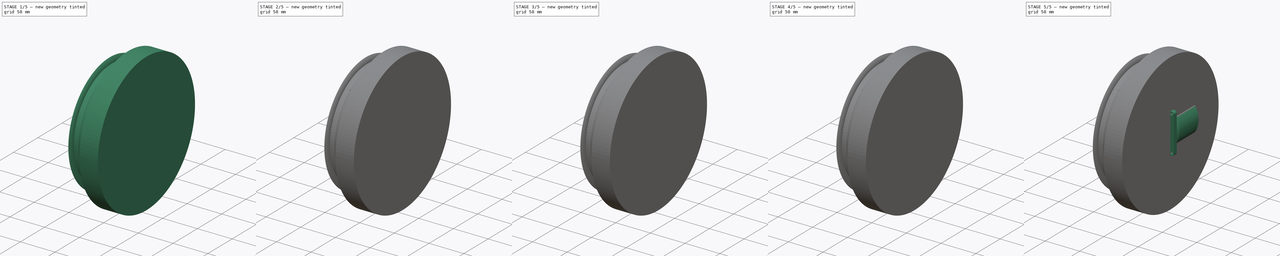
[diagram: build sequence overview — one tinted view per stage of 5, left to right]
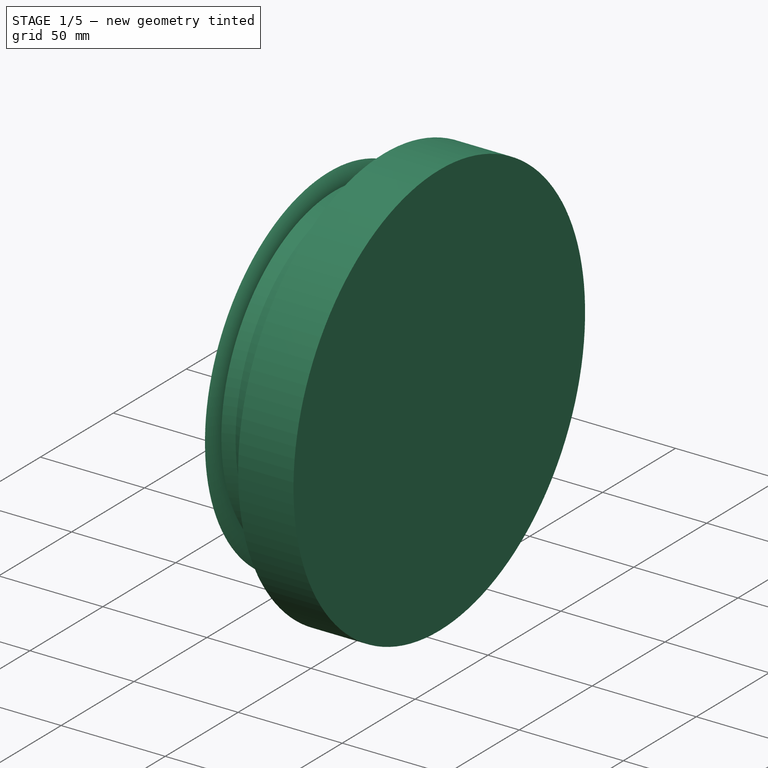
[diagram: stage 1 of 5 — iso view after this stage's code; geometry added in this stage tinted green]
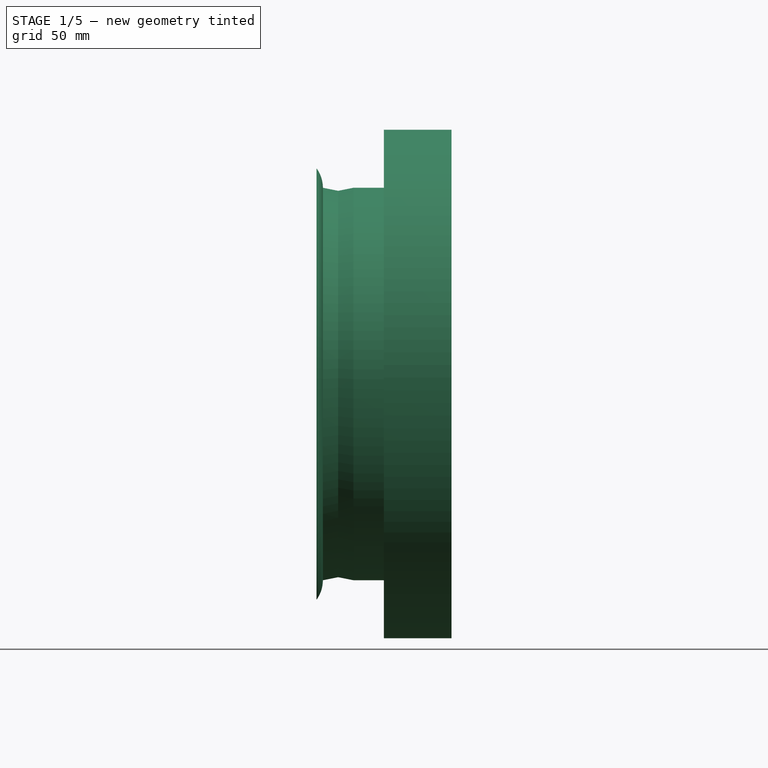
[diagram: stage 1 of 5 — front view after this stage's code; geometry added in this stage tinted green]
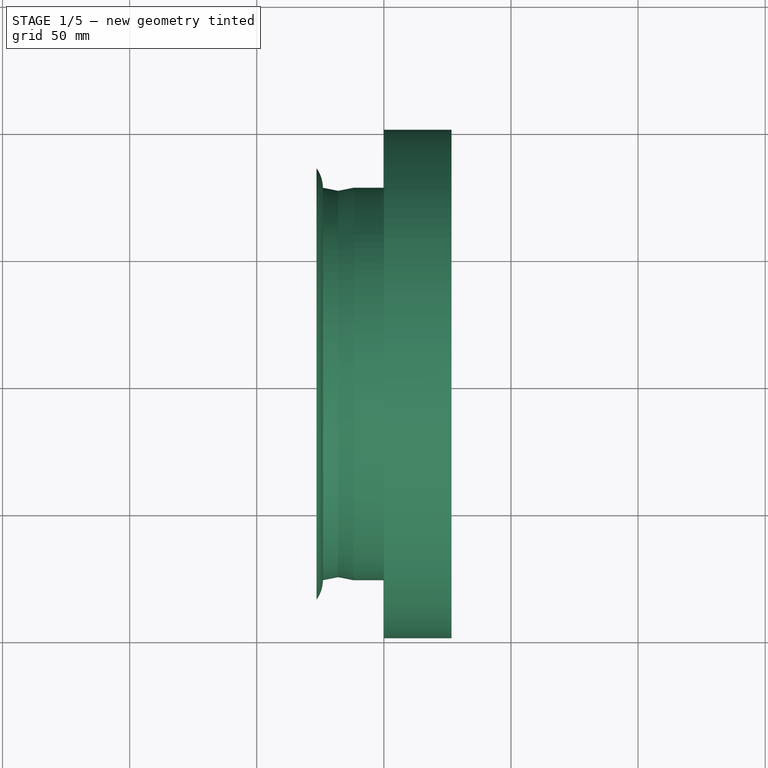
[diagram: stage 1 of 5 — top view after this stage's code; geometry added in this stage tinted green]
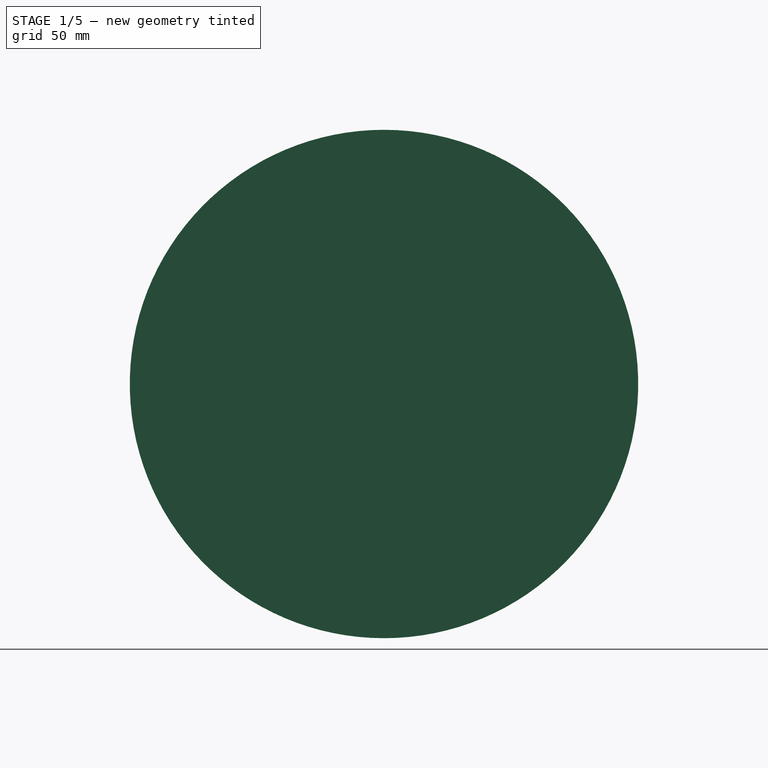
[diagram: stage 1 of 5 — right view after this stage's code; geometry added in this stage tinted green]
FCSTD DOCUMENT  (FreeCAD 1.0R39109 (Git))
Label: Wheel2
License: All rights reserved
LicenseURL: https://en.wikipedia.org/wiki/All_rights_reserved
objects: Sketcher::SketchObject×13, PartDesign::Body×7, PartDesign::Revolution×6, PartDesign::Pocket×5, App::Part×3, Part::FeaturePython×2, PartDesign::SubShapeBinder×2, Part::MultiCommon×2, App::FeaturePython×1, PartDesign::Pad×1, PartDesign::Groove×1, PartDesign::PolarPattern×1, Part::MultiFuse×1, Part::Cylinder×1
note: 82 computed .brp shape members not serialized (recipe doc carries the construction recipe); baked Part::Feature solids carry a one-line shape summary decoded from their .brp

FEATURE [App::FeaturePython] dd  # WARN: FeaturePython — macro-defined, semantics opaque (R4)
  DynamicData = Created with DynamicData (v2.73) workbench. | This is a simple container object built | for holding custom properties.
  G1_Height = 12
  G1_Module = 1.5
  G1_Teeth = 26
  G2_Teeth = 89
  MotorZ = -36.75
  expr: MotorZ = -G1_Module * G2_Teeth / 2 + 30 mm
FEATURE [App::Part] Part001  label="Part2"
  Origin = -> Origin001
FEATURE [Sketcher::SketchObject] Sketch062  label="T_Sketch062"
  ArcFitTolerance = 1e-06
  AttachmentSupport = -> [XZ_Plane003]
  FullyConstrained = true
  MakeInternals = false
  MapMode = 5
  Placement = pos=(0,0,0) rot=(1,0,0;1.5708rad)
  sketch-geometry (15):
    g0: LineSegment StartX=-20.5 StartY=-107.5 StartZ=0 EndX=20.5 EndY=-107.5 EndZ=0
    g1: ArcOfCircle [constr] CenterX=5.6e-15 CenterY=-100 CenterZ=0 NormalX=0 NormalY=0 NormalZ=1 AngleXU=0 Radius=30 StartAngle=0.927295 EndAngle=2.2143
    g2: GeomPoint X=0 Y=-70 Z=0
    g3: ArcOfCircle CenterX=-20.5 CenterY=-101.5 CenterZ=0 NormalX=0 NormalY=0 NormalZ=1 AngleXU=0 Radius=6 StartAngle=3.14159 EndAngle=4.71239
    g4: ArcOfCircle CenterX=20.5 CenterY=-101.5 CenterZ=0 NormalX=0 NormalY=0 NormalZ=1 AngleXU=0 Radius=6 StartAngle=4.71239 EndAngle=6.28319
    g5: LineSegment StartX=-26.5 StartY=-101.5 StartZ=0 EndX=-26.5 EndY=-84.8649 EndZ=0
    g6: LineSegment StartX=26.5 StartY=-101.5 StartZ=0 EndX=26.5 EndY=-84.8649 EndZ=0
    g7: ArcOfCircle CenterX=-37 CenterY=-77.2 CenterZ=0 NormalX=0 NormalY=0 NormalZ=1 AngleXU=0 Radius=13 StartAngle=5.65262 EndAngle=6.28319
    g8: ArcOfCircle CenterX=37 CenterY=-77.2 CenterZ=0 NormalX=0 NormalY=0 NormalZ=1 AngleXU=0 Radius=13 StartAngle=3.14159 EndAngle=3.77216
    g9: LineSegment StartX=-24 StartY=-77.2 StartZ=0 EndX=-18 EndY=-76 EndZ=0
    g10: LineSegment StartX=18 StartY=-76 StartZ=0 EndX=24 EndY=-77.2 EndZ=0
    g11: LineSegment [constr] StartX=-24 StartY=-77.2 StartZ=0 EndX=-37 EndY=-77.2 EndZ=0
    g12: LineSegment StartX=-18 StartY=-76 StartZ=0 EndX=-18 EndY=-101.5 EndZ=0
    g13: LineSegment StartX=-18 StartY=-101.5 StartZ=0 EndX=18 EndY=-101.5 EndZ=0
    g14: LineSegment StartX=18 StartY=-101.5 StartZ=0 EndX=18 EndY=-76 EndZ=0
  constraints (39):
    c: Horizontal(g0)
    c: PointOnObject(g2,g1)
    c: PointOnObject(g2,g-2)
    c: Tangent(g0,g3) = -1.5708
    c: Tangent(g0,g4) = -1.5708
    c: Radius(g3) = 6
    c: Symmetric(g1,g1,g-2)
    c: Symmetric(g4,g3,g-2)
    c: Distance(g0,g-1) = 107.5
    c: Vertical(g5)
    c: Vertical(g6)
    c: Tangent(g4,g6) = -1.5708
    c: Tangent(g3,g5) = 1.5708
    c: Coincident(g7,g5)
    c: Coincident(g8,g6)
    c: Symmetric(g8,g7,g-2)
    c: Coincident(g9,g7)
    c: Coincident(g9,g1)
    c: Coincident(g10,g1)
    c: Coincident(g10,g8)
    c: Symmetric(g8,g7,g-2)
    c: DistanceY(g7,g1) = 1.2
    c: DistanceX(g1,g8) = 6
    c: DistanceX(g7,g8) = 48
    c: Distance(g8,g-1) = 77.2
    c: Radius(g1) = 30
    c: Coincident(g11,g7)
    c: Coincident(g11,g7)
    c: Horizontal(g11)
    c: Distance(g3,g4) = 53
    c: Radius(g7) = 13
    c: Coincident(g1,g12)
    c: Vertical(g12)
    c: Coincident(g13,g12)
    c: Horizontal(g13)
    c: Coincident(g14,g13)
    c: Coincident(g14,g1)
    c: Vertical(g14)
    c: PointOnObject(g4,g13)
FEATURE [PartDesign::Revolution] Revolution  label="T_Revolution000"
  Angle = 360
  Angle2 = 60
  Axis = (1,0,0)
  Base = (0,0,0)
  Placement = pos=(0,0,0) rot=(1,0,0;1.5708rad)
  Profile = -> Sketch062
  ReferenceAxis = -> Sketch062 [H_Axis]
  Refine = true
  Reversed = true
  Suppressed = false
  Type = 0
FEATURE [PartDesign::Body] Body003  label="Shell10"
  AllowCompound = false
  Group = -> [Sketch063,Revolution002,Sketch064,Pocket002,Sketch065,Pocket003]
  Origin = -> Origin006
  Placement = pos=(0,0,-54.75) rot=(0,0,1;0rad)
  Tip = -> Pocket003
  expr: .Placement.Base.z = -dd.G1_Module * dd.G2_Teeth / 2 + dd.G1_Height
FEATURE [PartDesign::SubShapeBinder] Binder  label="P3_Binder000_T"
  BindCopyOnChange = 0
  BindMode = 0
  ClaimChildren = false
  Context = -> Part002 [Body004.Binder.]
  Fuse = false
  MakeFace = true
  OffsetFill = false
  OffsetIntersection = false
  OffsetJoinType = 0
  OffsetOpenResult = false
  PartialLoad = false
  Refine = true
  Relative = true
  Support = -> [Body[Revolution.Face10,Revolution.Face4,Revolution.Face5,Revolution.Face9]]
  _Version = 2
FEATURE [Sketcher::SketchObject] Sketch066  label="P3_Sketch066"
  ArcFitTolerance = 1e-06
  AttachmentSupport = -> [XZ_Plane007]
  ExternalGeometry = -> [Binder]
  FullyConstrained = true
  MakeInternals = false
  MapMode = 5
  Placement = pos=(0,0,0) rot=(1,0,0;1.5708rad)
  expr: Constraints[30] = dd.G1_Module * dd.G1_Teeth / 2
  expr: Constraints[33] = dd.G2_Teeth * dd.G1_Module / 2
  expr: Constraints[41] = dd.G1_Height * (1 + dd.G1_Teeth / dd.G2_Teeth)
  sketch-geometry (17):
    g0: LineSegment StartX=-24 StartY=-77.2 StartZ=0 EndX=-18 EndY=-76 EndZ=0
    g1: LineSegment StartX=-18 StartY=-76 StartZ=0 EndX=-12 EndY=-77.2 EndZ=0
    g2: LineSegment StartX=-12 StartY=-77.2 StartZ=0 EndX=12 EndY=-77.2 EndZ=0
    g3: LineSegment StartX=12 StartY=-77.2 StartZ=0 EndX=18 EndY=-76 EndZ=0
    g4: LineSegment StartX=18 StartY=-76 StartZ=0 EndX=24 EndY=-77.2 EndZ=0
    g5: ArcOfCircle CenterX=-37 CenterY=-77.2 CenterZ=0 NormalX=0 NormalY=0 NormalZ=1 AngleXU=0 Radius=13 StartAngle=5.65262 EndAngle=6.28319
    g6: ArcOfCircle CenterX=37 CenterY=-77.2 CenterZ=0 NormalX=0 NormalY=0 NormalZ=1 AngleXU=0 Radius=13 StartAngle=3.14159 EndAngle=3.77216
    g7: LineSegment StartX=-26.5 StartY=-84.8649 StartZ=0 EndX=-26.5 EndY=-66.75 EndZ=0
    g8: LineSegment StartX=26.5 StartY=-84.8649 StartZ=0 EndX=26.5 EndY=-66.75 EndZ=0
    g9: LineSegment StartX=-26.5 StartY=-66.75 StartZ=0 EndX=-19.5 EndY=-66.75 EndZ=0
    g10: LineSegment StartX=-19.5 StartY=-66.75 StartZ=0 EndX=-15 EndY=-70 EndZ=0
    g11: LineSegment StartX=-15 StartY=-70 StartZ=0 EndX=15 EndY=-70 EndZ=0
    g12: LineSegment StartX=15 StartY=-70 StartZ=0 EndX=19.5 EndY=-66.75 EndZ=0
    g13: LineSegment [constr] StartX=19.5 StartY=-66.75 StartZ=0 EndX=26.5 EndY=-66.75 EndZ=0
    g14: LineSegment StartX=19.5 StartY=-66.75 StartZ=0 EndX=19.5 EndY=-51.2444 EndZ=0
    g15: LineSegment StartX=19.5 StartY=-51.2444 StartZ=0 EndX=26.5 EndY=-51.2444 EndZ=0
    g16: LineSegment StartX=26.5 StartY=-51.2444 StartZ=0 EndX=26.5 EndY=-66.75 EndZ=0
  constraints (42):
    c: Coincident(g-4,g0)
    c: Coincident(g0,g-4)
    c: Coincident(g0,g1)
    c: Coincident(g1,g2)
    c: Coincident(g2,g3)
    c: Coincident(g3,g-5)
    c: Coincident(g3,g4)
    c: Coincident(g4,g-6)
    c: Symmetric(g2,g1,g-2)
    c: Coincident(g5,g-3)
    c: Coincident(g5,g0)
    c: Coincident(g6,g-6)
    c: Coincident(g6,g4)
    c: Coincident(g7,g5)
    c: Vertical(g7)
    c: Coincident(g8,g6)
    c: Vertical(g8)
    c: PointOnObject(g-6,g8)
    c: Symmetric(g7,g8,g-2)
    c: Equal(g1,g0)
    c: Parallel(g4,g1)
    c: Coincident(g7,g9)
    c: Horizontal(g9)
    c: Coincident(g9,g10)
    c: Coincident(g10,g11)
    c: Coincident(g11,g12)
    c: Coincident(g12,g13)
    c: Coincident(g13,g8)
    c: Symmetric(g12,g9,g-2)
    c: Symmetric(g11,g10,g-2)
    c: Distance(g9,g-2) = 19.5
    c: DistanceX(g11,g11) = 30
    c: DistanceY(g3,g11) = 6
    c: Distance(g7,g-1) = 66.75
    c: Coincident(g12,g14)
    c: Vertical(g14)
    c: Coincident(g14,g15)
    c: Horizontal(g15)
    c: Coincident(g15,g16)
    c: Coincident(g16,g8)
    c: Vertical(g16)
    c: DistanceY(g16,g16) = 15.5056
FEATURE [PartDesign::Revolution] Revolution003  label="P3_Revolution003"
  Angle = 360
  Angle2 = 60
  Axis = (1,0,0)
  Base = (0,0,0)
  Placement = pos=(0,0,0) rot=(1,0,0;1.5708rad)
  Profile = -> Sketch066
  ReferenceAxis = -> Sketch066 [H_Axis]
  Refine = true
  Reversed = true
  Suppressed = false
  Type = 0
FEATURE [App::Part] Part  label="Part1"
  Group = -> [Body001,Body002,Body003,BevelGear001,Body006,Common001]
  Origin = -> Origin
FEATURE [Sketcher::SketchObject] Sketch070  label="P3_Sketch070"
  ArcFitTolerance = 1e-06
  AttachmentOffset = pos=(0,-73,0) rot=(0,0,1;0rad)
  AttachmentSupport = -> [XZ_Plane007]
  ExternalGeometry = -> [Revolution003]
  FullyConstrained = true
  MakeInternals = false
  MapMode = 5
  Placement = pos=(0,-1.62e-14,-73) rot=(1,0,0;1.5708rad)
  sketch-geometry (10):
    g0: LineSegment StartX=23.9 StartY=2.2 StartZ=0 EndX=-15 EndY=2.2 EndZ=0
    g1: LineSegment StartX=-15 StartY=2.2 StartZ=0 EndX=-15.9 EndY=3.1 EndZ=0
    g2: LineSegment StartX=-15.9 StartY=3.1 StartZ=0 EndX=-25.7 EndY=3.1 EndZ=0
    g3: LineSegment StartX=-25.7 StartY=3.1 StartZ=0 EndX=-25.7 EndY=4.8 EndZ=0
    g4: LineSegment StartX=-25.7 StartY=4.8 StartZ=0 EndX=-26.5 EndY=4.8 EndZ=0
    g5: LineSegment StartX=-26.5 StartY=4.8 StartZ=0 EndX=-26.5 EndY=0 EndZ=0
    g6: LineSegment StartX=-26.5 StartY=0 StartZ=0 EndX=26.5 EndY=0 EndZ=0
    g7: LineSegment StartX=23.9 StartY=2.2 StartZ=0 EndX=25.7 EndY=4 EndZ=0
    g8: LineSegment StartX=25.7 StartY=4 StartZ=0 EndX=26.5 EndY=4 EndZ=0
    g9: LineSegment StartX=26.5 StartY=4 StartZ=0 EndX=26.5 EndY=0 EndZ=0
  constraints (30):
    c: PointOnObject(g6,g-1)
    c: Horizontal(g0)
    c: Coincident(g0,g1)
    c: Coincident(g1,g2)
    c: Horizontal(g2)
    c: Coincident(g2,g3)
    c: Coincident(g3,g4)
    c: Coincident(g4,g5)
    c: PointOnObject(g5,g-1)
    c: Vertical(g5)
    c: Coincident(g5,g6)
    c: PointOnObject(g-4,g5)
    c: Vertical(g3)
    c: Horizontal(g4)
    c: Distance(g4,g4) = 0.8
    c: DistanceY(g5,g5) = 4.8
    c: Distance(g2,g-1) = 3.1
    c: DistanceX(g5,g1) = 10.6
    c: Angle(g2,g1) = 2.35619
    c: Distance(g0,g-1) = 2.2
    c: Coincident(g0,g7)
    c: Coincident(g7,g8)
    c: Horizontal(g8)
    c: Coincident(g8,g9)
    c: Coincident(g9,g6)
    c: Vertical(g9)
    c: PointOnObject(g-3,g9)
    c: Distance(g9,g9) = 4
    c: Distance(g8,g8) = 0.8
    c: Perpendicular(g1,g7)
FEATURE [PartDesign::Groove] Groove  label="P3_Groove000"
  Angle = 360
  Angle2 = 60
  Axis = (1,0,0)
  Base = (0,-1.62e-14,-73)
  BaseFeature = -> Revolution003
  Placement = pos=(0,0,0) rot=(1,0,0;1.5708rad)
  Profile = -> Sketch070
  ReferenceAxis = -> Sketch070 [H_Axis]
  Refine = true
  Reversed = true
  Suppressed = false
  Type = 0
FEATURE [Part::Cylinder] Cylinder  label="P3_Цилиндр_Div"
  Angle = 360
  AttacherType = Attacher::AttachEngine3D
  FirstAngle = 0
  Height = 26.6
  Placement = pos=(0,0,0) rot=(0,1,0;1.5708rad)
  Radius = 100
  SecondAngle = 0
FEATURE [App::Part] Part002  label="Part3"
  Group = -> [Body,Body004,BevelGear,Common,Body005,Fusion,Cylinder]
  Origin = -> Origin002
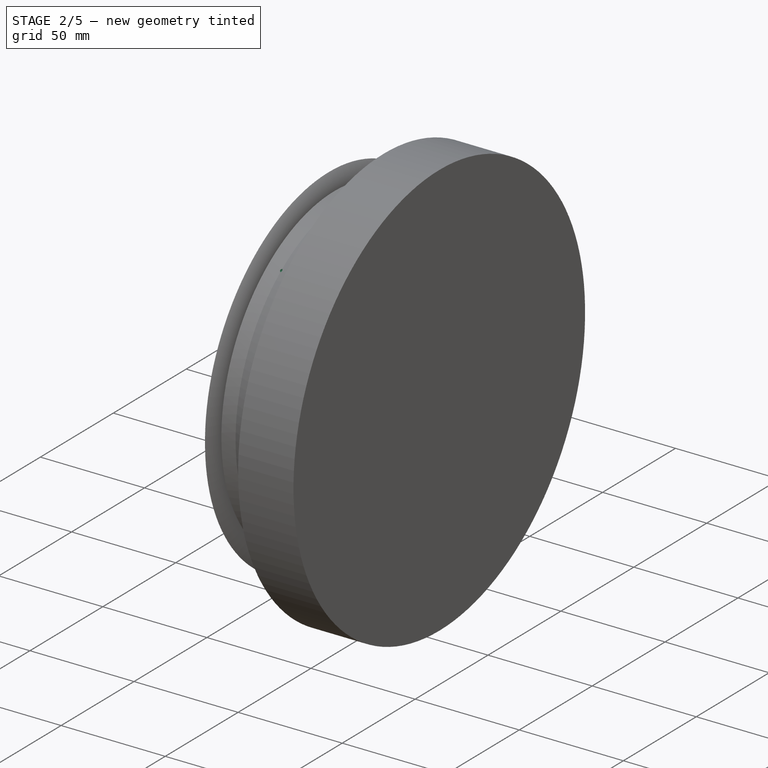
[diagram: stage 2 of 5 — iso view after this stage's code; geometry added in this stage tinted green]
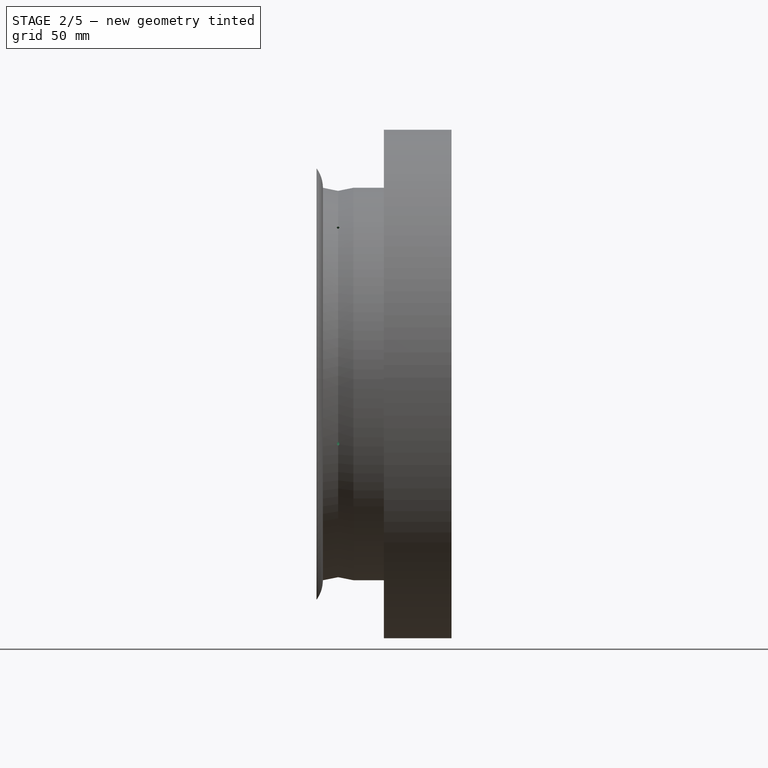
[diagram: stage 2 of 5 — front view after this stage's code; geometry added in this stage tinted green]
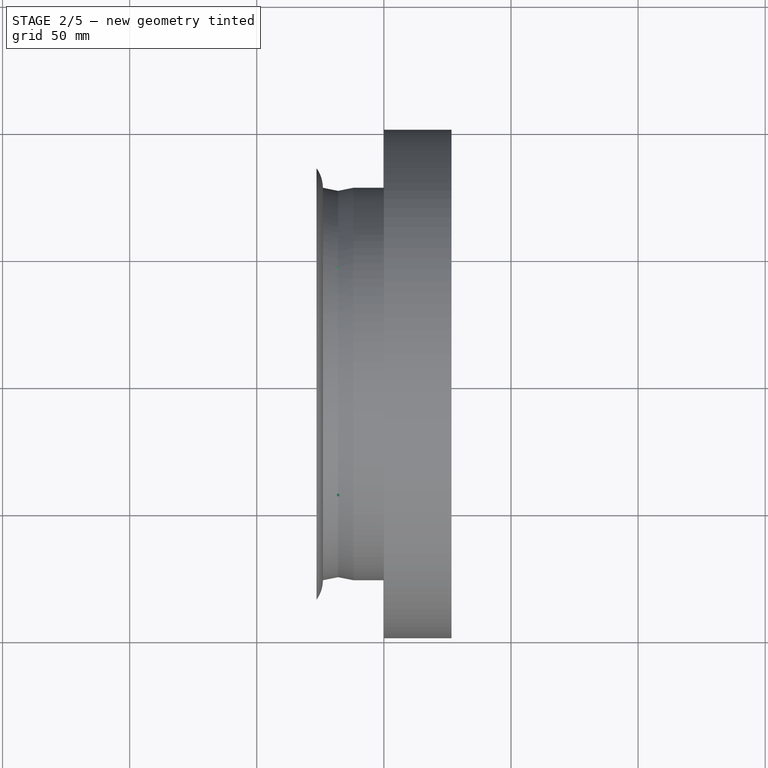
[diagram: stage 2 of 5 — top view after this stage's code; geometry added in this stage tinted green]
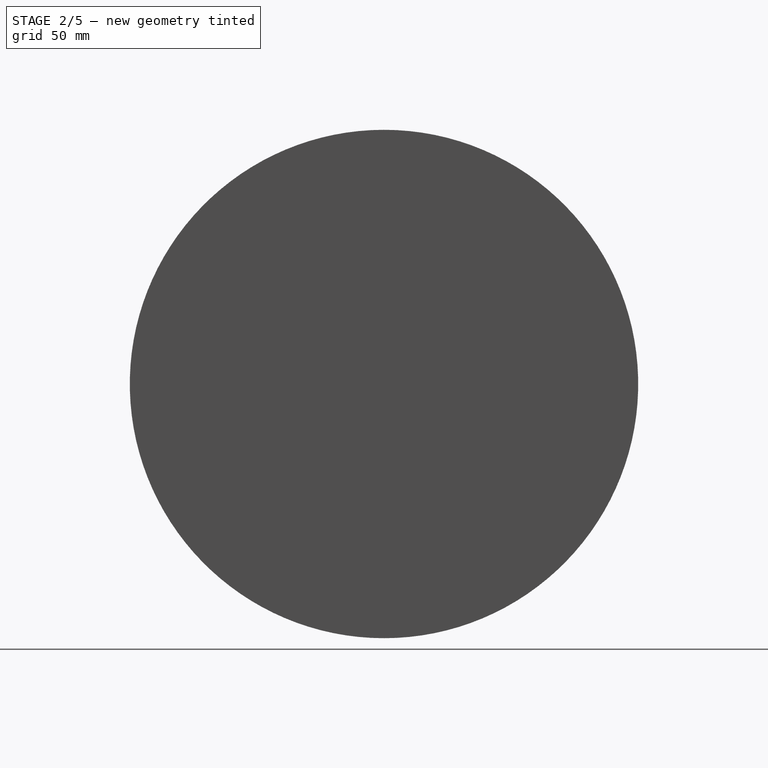
[diagram: stage 2 of 5 — right view after this stage's code; geometry added in this stage tinted green]
FEATURE [PartDesign::Body] Body002  label="ODrive"
  AllowCompound = false
  Group = -> [Sketch003,Pad]
  Origin = -> Origin005
  Placement = pos=(0,1.44e-14,25.25) rot=(0.57735,-0.57735,0.57735;4.18879rad)
  Tip = -> Pad
  expr: .Placement.Base.z = dd.MotorZ + 62 mm
FEATURE [Part::FeaturePython] BevelGear  label="P3_BevelGear2"  # WARN: FeaturePython — macro-defined, semantics opaque (R4)
  AttacherType = Attacher::AttachEngine3D
  AttachmentOffset = pos=(0,0,19.5) rot=(0,1,0;3.14159rad)
  AttachmentSupport = -> [YZ_Plane002]
  MapMode = 5
  Placement = pos=(19.5,0,0) rot=(-0.57735,0.57735,0.57735;4.18879rad)
  angular_backlash = 0
  backlash = 0
  beta = -6.92308
  clearance = 0.1
  dw = 133.5
  height = 3.50562
  module = 1.5
  num_teeth = 89
  numpoints = 20
  pitch_angle = 73.7151
  pressure_angle = 20
  reset_origin = true
  version = 1.3.0
  expr: .AttachmentOffset.Base.z = dd.G1_Module * dd.G1_Teeth / 2
  expr: angular_backlash = backlash / dw * 360 ° / pi
  expr: beta = -180 ° / dd.G1_Teeth
  expr: dw = num_teeth * module
  expr: height = dd.G1_Height * dd.G1_Teeth / dd.G2_Teeth
  expr: module = dd.G1_Module
  expr: num_teeth = dd.G2_Teeth
  expr: pitch_angle = atan(dd.G2_Teeth / dd.G1_Teeth)
FEATURE [Sketcher::SketchObject] Sketch067  label="G2_Sketch067"
  ArcFitTolerance = 1e-06
  AttachmentSupport = -> [XZ_Plane008]
  FullyConstrained = true
  MakeInternals = false
  MapMode = 5
  Placement = pos=(0,0,0) rot=(1,0,0;1.5708rad)
  expr: Constraints[10] = dd.G1_Height + 0.5 mm
  expr: Constraints[7] = dd.G1_Module * dd.G2_Teeth / 2 + 0.5 mm
  expr: Constraints[8] = dd.G1_Module * dd.G1_Teeth / 2
  expr: Constraints[9] = dd.G1_Height * dd.G1_Teeth / dd.G2_Teeth
  sketch-geometry (4):
    g0: LineSegment StartX=19.5 StartY=-67.25 StartZ=0 EndX=19.5 EndY=-51.2444 EndZ=0
    g1: LineSegment StartX=19.5 StartY=-51.2444 StartZ=0 EndX=15.9944 EndY=-54.75 EndZ=0
    g2: LineSegment StartX=15.9944 StartY=-54.75 StartZ=0 EndX=15.9944 EndY=-67.25 EndZ=0
    g3: LineSegment StartX=15.9944 StartY=-67.25 StartZ=0 EndX=19.5 EndY=-67.25 EndZ=0
  constraints (12):
    c: Vertical(g0)
    c: Coincident(g0,g1)
    c: Coincident(g1,g2)
    c: Vertical(g2)
    c: Coincident(g2,g3)
    c: Coincident(g3,g0)
    c: Horizontal(g3)
    c: Distance(g0,g-1) = 67.25
    c: Distance(g0,g-2) = 19.5
    c: Distance(g3,g3) = 3.50562
    c: Distance(g2,g2) = 12.5
    c: Angle(g1,g0) = 0.785398
FEATURE [PartDesign::Revolution] Revolution004  label="G2_Revolution004"
  Angle = 360
  Angle2 = 60
  Axis = (1,0,0)
  Base = (0,0,0)
  Placement = pos=(0,0,0) rot=(1,0,0;1.5708rad)
  Profile = -> Sketch067
  ReferenceAxis = -> Sketch067 [H_Axis]
  Refine = true
  Reversed = true
  Suppressed = false
  Type = 0
FEATURE [PartDesign::Body] Body005  label="G2_Comm"
  AllowCompound = false
  Group = -> [Sketch067,Revolution004]
  Origin = -> Origin008
  Tip = -> Revolution004
FEATURE [Part::MultiCommon] Common  label="G2_Common"
  Refine = true
  Shapes = -> [BevelGear,Body005]
FEATURE [PartDesign::PolarPattern] PolarPattern  label="P3_PolarPattern000"
  Angle = 360
  Axis = -> X_Axis007
  BaseFeature = -> Groove
  Mode = 0
  Occurrences = 5
  Offset = 120
  Originals = -> [Groove]
  Placement = pos=(0,0,0) rot=(1,0,0;1.5708rad)
  Refine = true
  Suppressed = false
  TransformMode = 0
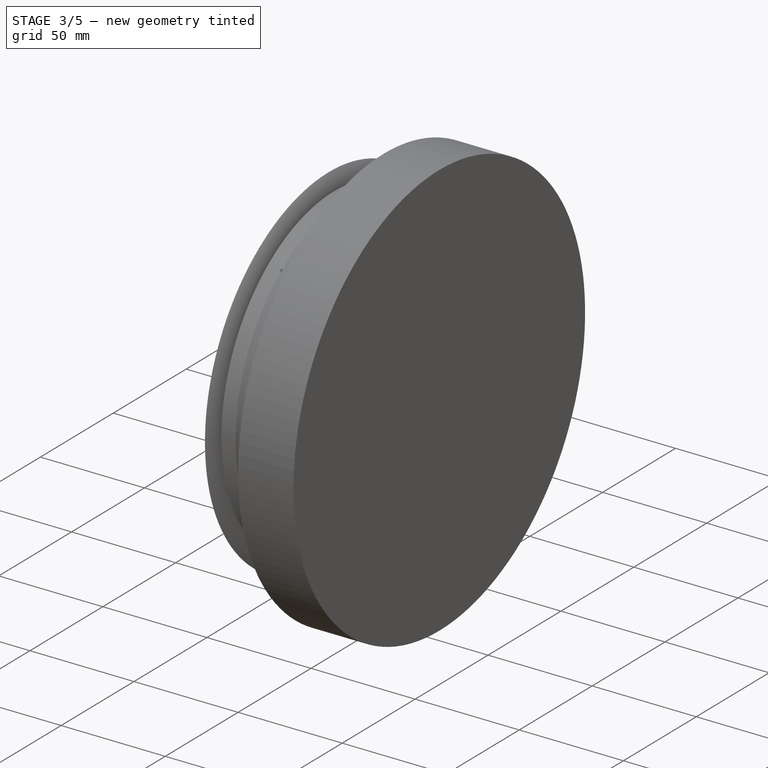
[diagram: stage 3 of 5 — iso view after this stage's code; geometry added in this stage tinted green]
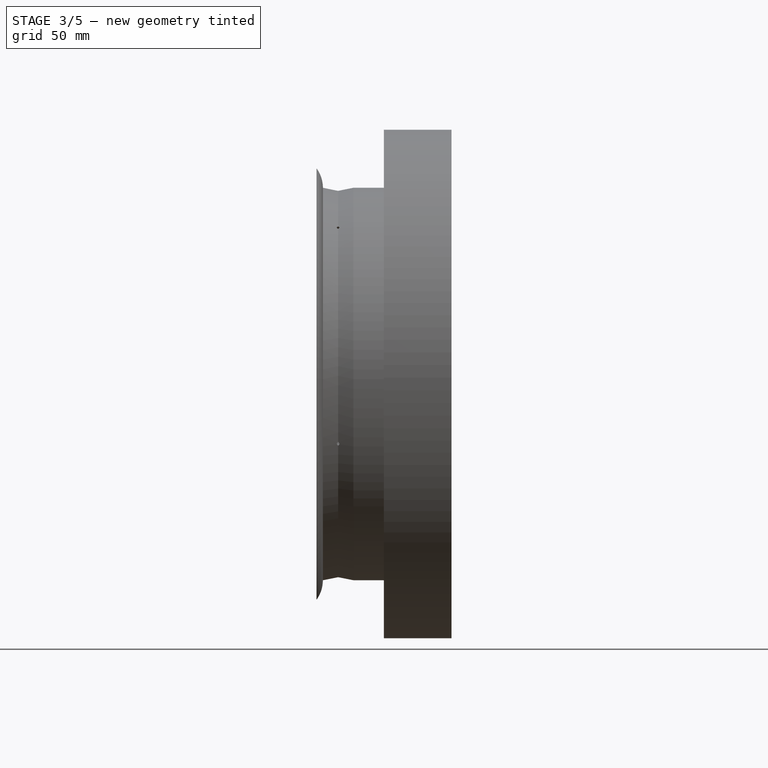
[diagram: stage 3 of 5 — front view after this stage's code; geometry added in this stage tinted green]
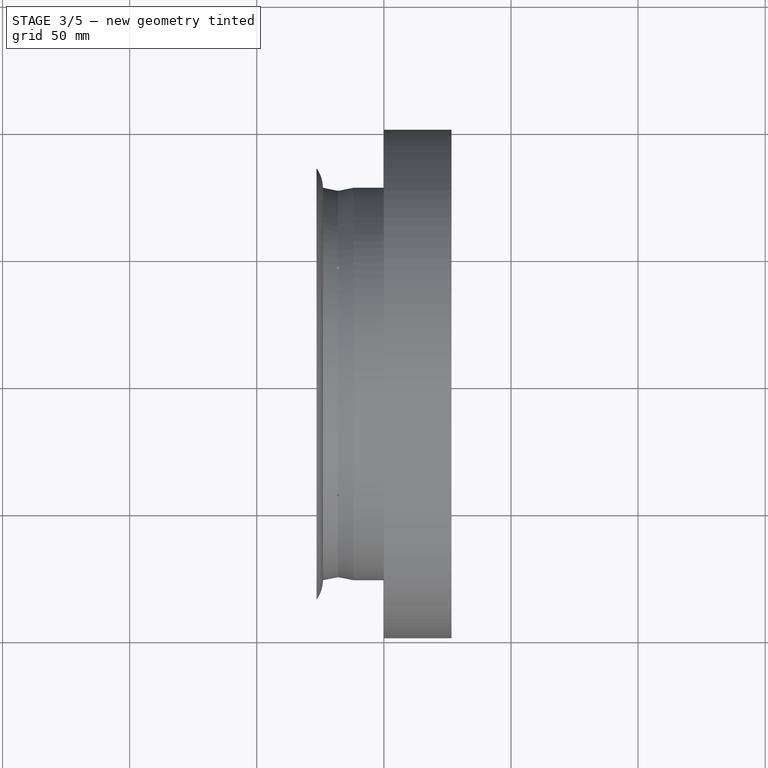
[diagram: stage 3 of 5 — top view after this stage's code; geometry added in this stage tinted green]
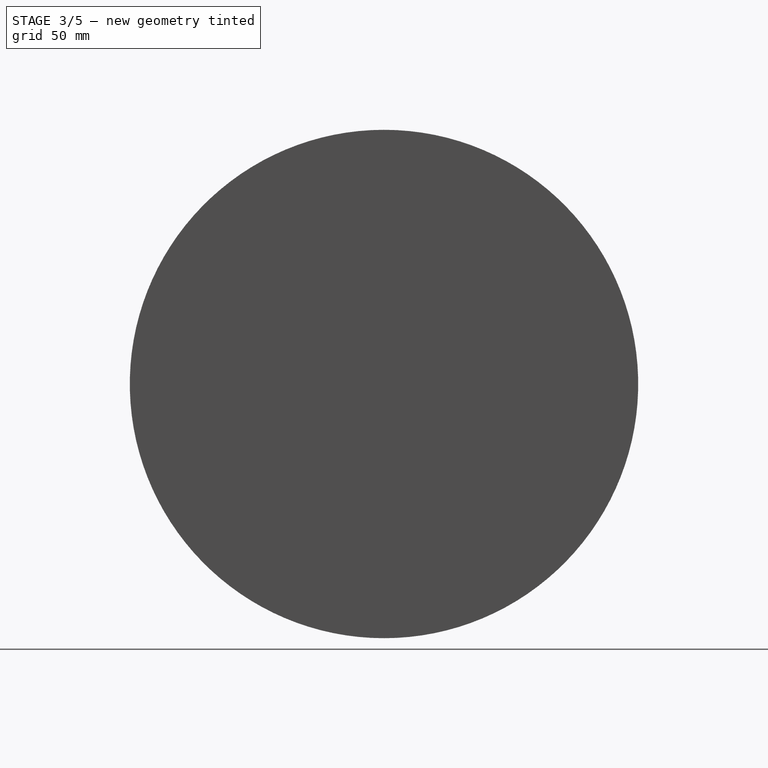
[diagram: stage 3 of 5 — right view after this stage's code; geometry added in this stage tinted green]
FEATURE [Sketcher::SketchObject] Sketch063  label="S_Sketch063"
  ArcFitTolerance = 1e-06
  AttachmentSupport = -> [XZ_Plane006]
  FullyConstrained = true
  MakeInternals = false
  MapMode = 5
  Placement = pos=(0,0,0) rot=(1,0,0;1.5708rad)
  sketch-geometry (6):
    g0: LineSegment StartX=5 StartY=13 StartZ=0 EndX=5 EndY=0 EndZ=0
    g1: LineSegment StartX=5 StartY=0 StartZ=0 EndX=16 EndY=0 EndZ=0
    g2: LineSegment StartX=16 StartY=0 StartZ=0 EndX=16 EndY=3 EndZ=0
    g3: LineSegment StartX=16 StartY=3 StartZ=0 EndX=8 EndY=3 EndZ=0
    g4: LineSegment StartX=8 StartY=3 StartZ=0 EndX=8 EndY=13 EndZ=0
    g5: LineSegment StartX=8 StartY=13 StartZ=0 EndX=5 EndY=13 EndZ=0
  constraints (18):
    c: PointOnObject(g0,g-1)
    c: Vertical(g0)
    c: Coincident(g0,g1)
    c: PointOnObject(g1,g-1)
    c: Coincident(g1,g2)
    c: Vertical(g2)
    c: Coincident(g2,g3)
    c: Horizontal(g3)
    c: Coincident(g3,g4)
    c: Vertical(g4)
    c: Coincident(g4,g5)
    c: Coincident(g5,g0)
    c: Horizontal(g5)
    c: Distance(g0,g0) = 13
    c: Distance(g2,g2) = 3
    c: Distance(g0,g-1) = 5
    c: Distance(g-1,g1) = 16
    c: Distance(g4,g-2) = 8
FEATURE [PartDesign::Revolution] Revolution002  label="S_Revolution002"
  Angle = 360
  Angle2 = 60
  Axis = (0,2e-16,1)
  Base = (0,0,0)
  Placement = pos=(0,0,0) rot=(1,0,0;1.5708rad)
  Profile = -> Sketch063
  ReferenceAxis = -> Sketch063 [V_Axis]
  Refine = true
  Reversed = true
  Suppressed = false
  Type = 0
FEATURE [Sketcher::SketchObject] Sketch064  label="S_Sketch064"
  ArcFitTolerance = 1e-06
  AttachmentSupport = -> [XY_Plane006]
  FullyConstrained = true
  MakeInternals = false
  MapMode = 5
  sketch-geometry (8):
    g0: LineSegment [constr] StartX=-8.48528 StartY=8.48528 StartZ=0 EndX=-8.48528 EndY=-8.48528 EndZ=0
    g1: LineSegment [constr] StartX=-8.48528 StartY=-8.48528 StartZ=0 EndX=8.48528 EndY=-8.48528 EndZ=0
    g2: LineSegment [constr] StartX=8.48528 StartY=-8.48528 StartZ=0 EndX=8.48528 EndY=8.48528 EndZ=0
    g3: LineSegment [constr] StartX=8.48528 StartY=8.48528 StartZ=0 EndX=-8.48528 EndY=8.48528 EndZ=0
    g4: Circle CenterX=-8.48528 CenterY=8.48528 CenterZ=0 NormalX=0 NormalY=0 NormalZ=1 AngleXU=0 Radius=1.9
    g5: Circle CenterX=8.48528 CenterY=8.48528 CenterZ=0 NormalX=0 NormalY=0 NormalZ=1 AngleXU=0 Radius=1.9
    g6: Circle CenterX=8.48528 CenterY=-8.48528 CenterZ=0 NormalX=0 NormalY=0 NormalZ=1 AngleXU=0 Radius=1.9
    g7: Circle CenterX=-8.48528 CenterY=-8.48528 CenterZ=0 NormalX=0 NormalY=0 NormalZ=1 AngleXU=0 Radius=1.9
  constraints (19):
    c: Coincident(g0,g1)
    c: Coincident(g1,g2)
    c: Coincident(g2,g3)
    c: Coincident(g3,g0)
    c: Vertical(g0)
    c: Vertical(g2)
    c: Horizontal(g1)
    c: Horizontal(g3)
    c: Symmetric(g0,g2,g-1)
    c: Equal(g0,g3)
    c: Distance(g0,g-1) = 12
    c: Coincident(g4,g0)
    c: Coincident(g5,g2)
    c: Coincident(g6,g1)
    c: Coincident(g7,g0)
    c: Equal(g7,g4)
    c: Equal(g4,g6)
    c: Equal(g6,g5)
    c: Diameter(g5) = 3.8
FEATURE [PartDesign::Pocket] Pocket002  label="S_Pocket002"
  BaseFeature = -> Revolution002
  Direction = (0,0,-1)
  Length = 3
  Length2 = 5
  Placement = pos=(0,0,0) rot=(1,0,0;1.5708rad)
  Profile = -> Sketch064
  ReferenceAxis = -> Sketch064 [N_Axis]
  Refine = true
  Reversed = true
  Suppressed = false
  Type = 0
FEATURE [Sketcher::SketchObject] Sketch065  label="S_Sketch065"
  ArcFitTolerance = 1e-06
  AttachmentSupport = -> [XZ_Plane006]
  FullyConstrained = true
  MakeInternals = false
  MapMode = 5
  Placement = pos=(0,0,0) rot=(1,0,0;1.5708rad)
  sketch-geometry (1):
    g0: Circle CenterX=0 CenterY=8 CenterZ=0 NormalX=0 NormalY=0 NormalZ=1 AngleXU=0 Radius=2
  constraints (3):
    c: PointOnObject(g0,g-2)
    c: Diameter(g0) = 4
    c: Distance(g0,g-1) = 8
FEATURE [PartDesign::Pocket] Pocket003  label="S_Pocket003"
  BaseFeature = -> Pocket002
  Direction = (0,1,-2e-16)
  Length = 16
  Length2 = 5
  Midplane = true
  Placement = pos=(0,0,0) rot=(1,0,0;1.5708rad)
  Profile = -> Sketch065
  ReferenceAxis = -> Sketch065 [N_Axis]
  Refine = true
  Suppressed = false
  Type = 0
FEATURE [PartDesign::Body] Body004  label="P3_Base"
  AllowCompound = false
  Group = -> [Binder,Sketch066,Revolution003,Sketch070,Groove,PolarPattern]
  Origin = -> Origin007
  Tip = -> PolarPattern
FEATURE [Part::MultiFuse] Fusion  label="P3_Fusion000"
  Refine = true
  Shapes = -> [Body004,Common]
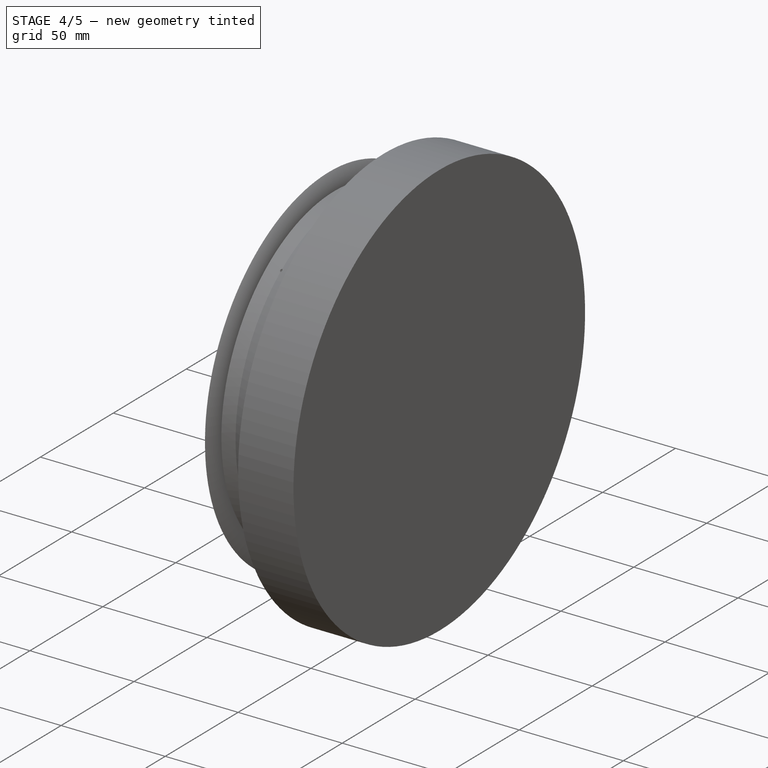
[diagram: stage 4 of 5 — iso view after this stage's code; geometry added in this stage tinted green]
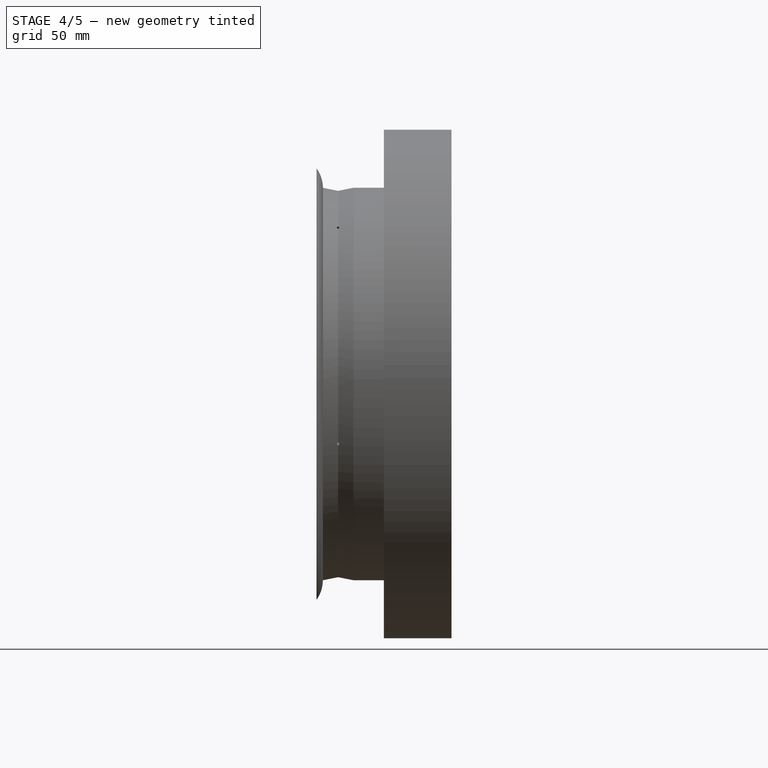
[diagram: stage 4 of 5 — front view after this stage's code; geometry added in this stage tinted green]
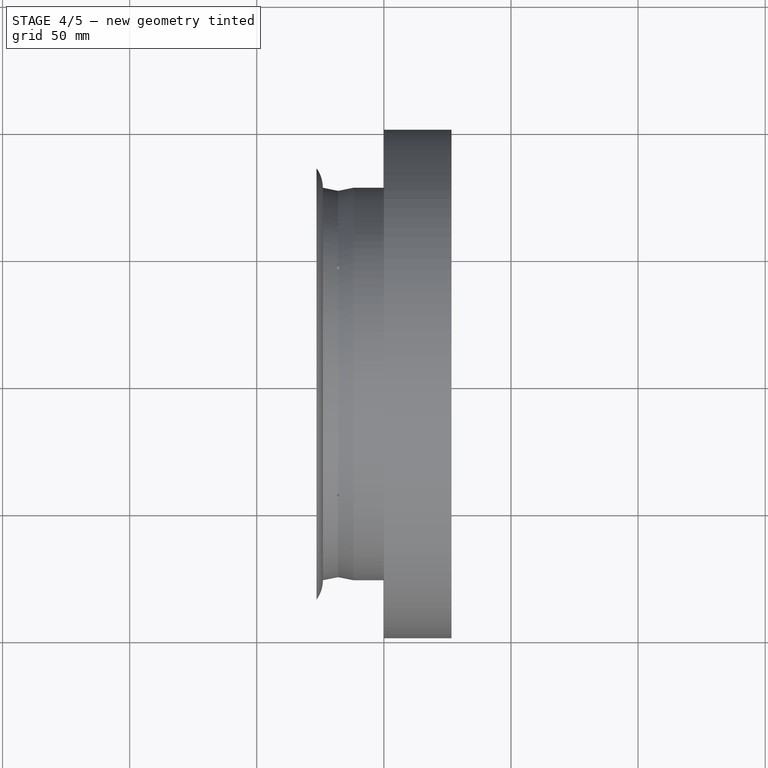
[diagram: stage 4 of 5 — top view after this stage's code; geometry added in this stage tinted green]
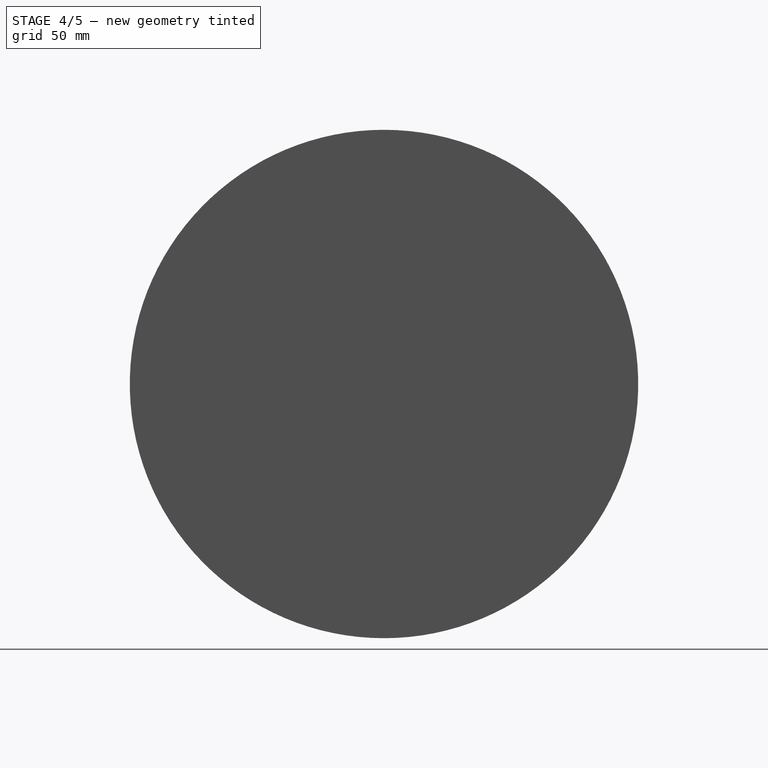
[diagram: stage 4 of 5 — right view after this stage's code; geometry added in this stage tinted green]
FEATURE [Part::FeaturePython] BevelGear001  label="P1_BevelGear1"  # WARN: FeaturePython — macro-defined, semantics opaque (R4)
  AttacherType = Attacher::AttachEngine3D
  Placement = pos=(0,0,-66.75) rot=(0,0,1;0rad)
  angular_backlash = 0
  backlash = 0
  beta = 6.92308
  clearance = 0.1
  dw = 39
  height = 12
  module = 1.5
  num_teeth = 26
  numpoints = 20
  pitch_angle = 16.2849
  pressure_angle = 20
  reset_origin = true
  version = 1.3.0
  expr: .Placement.Base.z = -dd.G1_Module * dd.G2_Teeth / 2
  expr: angular_backlash = backlash / dw * 360 ° / pi
  expr: beta = 180 ° / num_teeth
  expr: dw = num_teeth * module
  expr: height = dd.G1_Height
  expr: module = dd.G1_Module
  expr: num_teeth = dd.G1_Teeth
  expr: pitch_angle = atan(dd.G1_Teeth / dd.G2_Teeth)
FEATURE [PartDesign::SubShapeBinder] Binder001  label="G1_Binder001_S10"
  BindCopyOnChange = 0
  BindMode = 0
  ClaimChildren = false
  Context = -> Part [Body006.Binder001.]
  Fuse = false
  MakeFace = true
  OffsetFill = false
  OffsetIntersection = false
  OffsetJoinType = 0
  OffsetOpenResult = false
  PartialLoad = false
  Refine = true
  Relative = true
  Support = -> [Body003[Pocket003.Face2]]
  _Version = 2
FEATURE [Sketcher::SketchObject] Sketch068  label="G1_Sketch068"
  ArcFitTolerance = 1e-06
  AttachmentSupport = -> [XZ_Plane009]
  FullyConstrained = true
  MakeInternals = false
  MapMode = 5
  Placement = pos=(0,0,0) rot=(1,0,0;1.5708rad)
  expr: Constraints[10] = dd.G1_Module * dd.G1_Teeth / 2 - 0.3 mm
  expr: Constraints[8] = dd.G1_Module * dd.G2_Teeth / 2
  expr: Constraints[9] = dd.G1_Height
  sketch-geometry (4):
    g0: LineSegment StartX=5.4 StartY=-54.75 StartZ=0 EndX=5.4 EndY=-66.75 EndZ=0
    g1: LineSegment StartX=5.4 StartY=-66.75 StartZ=0 EndX=19.2 EndY=-66.75 EndZ=0
    g2: LineSegment StartX=19.2 StartY=-66.75 StartZ=0 EndX=19.2 EndY=-54.75 EndZ=0
    g3: LineSegment StartX=19.2 StartY=-54.75 StartZ=0 EndX=5.4 EndY=-54.75 EndZ=0
  constraints (12):
    c: Coincident(g0,g1)
    c: Coincident(g1,g2)
    c: Coincident(g2,g3)
    c: Coincident(g3,g0)
    c: Vertical(g0)
    c: Vertical(g2)
    c: Horizontal(g1)
    c: Horizontal(g3)
    c: DistanceY(g0,g-1) = 66.75
    c: Distance(g0,g0) = 12
    c: Distance(g1,g-2) = 19.2
    c: Distance(g0,g-2) = 5.4
FEATURE [PartDesign::Revolution] Revolution005  label="G1_Revolution005"
  Angle = 360
  Angle2 = 60
  Axis = (0,2e-16,1)
  Base = (0,0,0)
  Placement = pos=(0,0,0) rot=(1,0,0;1.5708rad)
  Profile = -> Sketch068
  ReferenceAxis = -> Sketch068 [V_Axis]
  Refine = true
  Reversed = true
  Suppressed = false
  Type = 0
FEATURE [Sketcher::SketchObject] Sketch069  label="G1_Sketch069"
  ArcFitTolerance = 1e-06
  AttachmentSupport = -> [Revolution005]
  ExternalGeometry = -> [Binder001]
  FullyConstrained = true
  MakeInternals = false
  MapMode = 5
  Placement = pos=(0,-1.48e-14,-66.75) rot=(1,0,0;3.14159rad)
  sketch-geometry (4):
    g0: Circle CenterX=-8.48528 CenterY=8.48528 CenterZ=0 NormalX=0 NormalY=0 NormalZ=1 AngleXU=0 Radius=1.7
    g1: Circle CenterX=8.48528 CenterY=8.48528 CenterZ=0 NormalX=0 NormalY=0 NormalZ=1 AngleXU=0 Radius=1.7
    g2: Circle CenterX=8.48528 CenterY=-8.48528 CenterZ=0 NormalX=0 NormalY=0 NormalZ=1 AngleXU=0 Radius=1.7
    g3: Circle CenterX=-8.48528 CenterY=-8.48528 CenterZ=0 NormalX=0 NormalY=0 NormalZ=1 AngleXU=0 Radius=1.7
  constraints (8):
    c: Coincident(g0,g-3)
    c: Coincident(g1,g-4)
    c: Coincident(g2,g-6)
    c: Coincident(g3,g-5)
    c: Equal(g3,g2)
    c: Equal(g2,g1)
    c: Equal(g1,g0)
    c: Diameter(g0) = 3.4
FEATURE [PartDesign::Pocket] Pocket004  label="G1_Pocket004"
  BaseFeature = -> Revolution005
  Direction = (0,0,1)
  Length = 12
  Length2 = 5
  Placement = pos=(0,0,0) rot=(1,0,0;1.5708rad)
  Profile = -> Sketch069
  ReferenceAxis = -> Sketch069 [N_Axis]
  Refine = true
  Suppressed = false
  Type = 0
  expr: Length = dd.G1_Height
FEATURE [PartDesign::Body] Body006  label="G1_Comm"
  AllowCompound = false
  Group = -> [Binder001,Sketch068,Revolution005,Sketch069,Pocket004]
  Origin = -> Origin009
  Tip = -> Pocket004
FEATURE [Part::MultiCommon] Common001
  Refine = true
  Shapes = -> [BevelGear001,Body006]
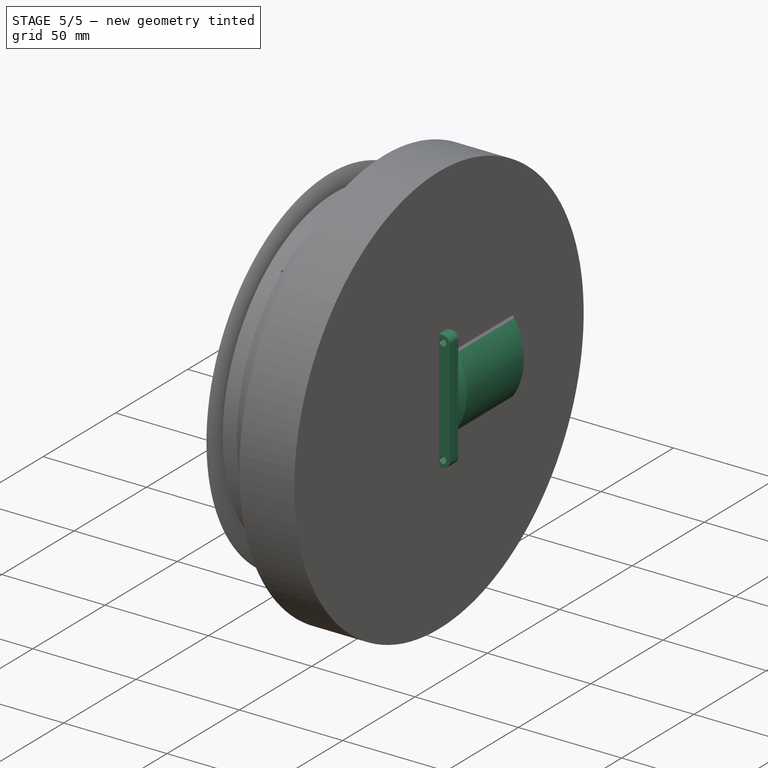
[diagram: stage 5 of 5 — iso view after this stage's code; geometry added in this stage tinted green]
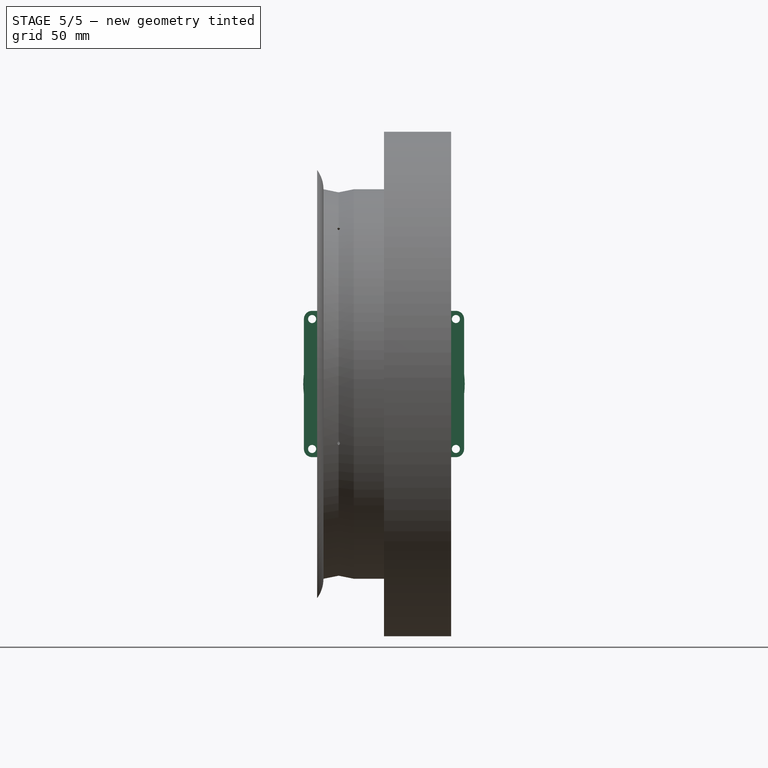
[diagram: stage 5 of 5 — front view after this stage's code; geometry added in this stage tinted green]
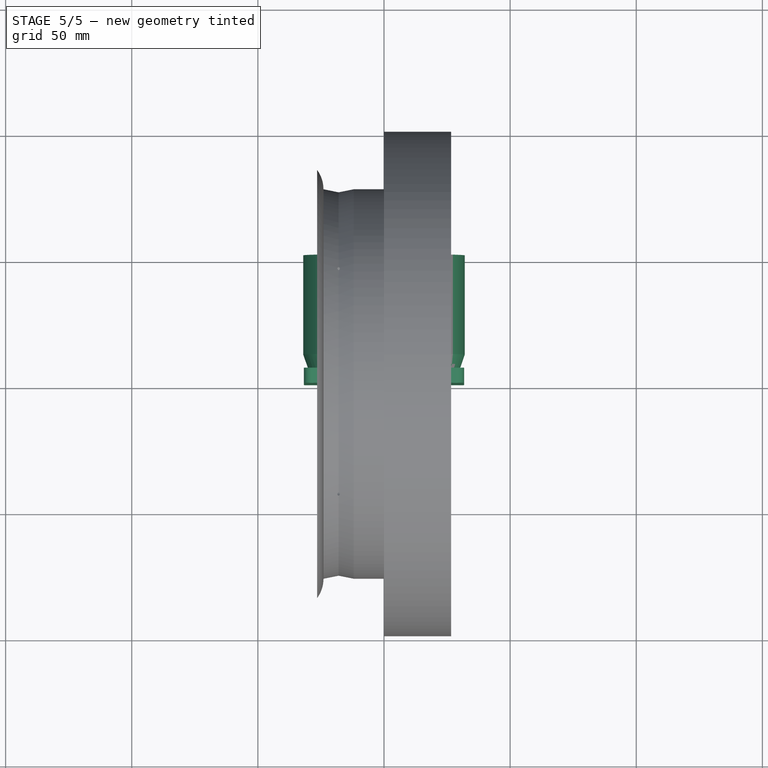
[diagram: stage 5 of 5 — top view after this stage's code; geometry added in this stage tinted green]
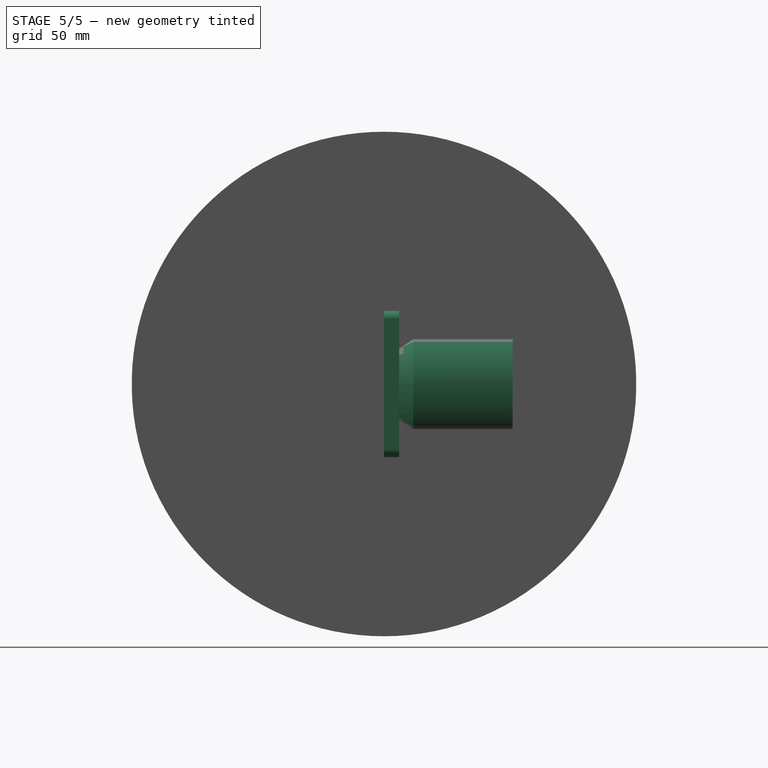
[diagram: stage 5 of 5 — right view after this stage's code; geometry added in this stage tinted green]
FEATURE [PartDesign::Body] Body  label="Tire"
  AllowCompound = false
  Group = -> [Sketch062,Revolution]
  Origin = -> Origin003
  Tip = -> Revolution
FEATURE [Sketcher::SketchObject] Sketch  label="M_Sketch000"
  ArcFitTolerance = 1e-06
  AttachmentSupport = -> [XZ_Plane004]
  FullyConstrained = true
  MakeInternals = false
  MapMode = 5
  Placement = pos=(0,0,0) rot=(1,0,0;1.5708rad)
  sketch-geometry (9):
    g0: Circle [constr] CenterX=0 CenterY=0 CenterZ=0 NormalX=0 NormalY=0 NormalZ=1 AngleXU=0 Radius=22
    g1: LineSegment [constr] StartX=-15.5563 StartY=15.5563 StartZ=0 EndX=-15.5563 EndY=-15.5563 EndZ=0
    g2: LineSegment [constr] StartX=-15.5563 StartY=-15.5563 StartZ=0 EndX=15.5563 EndY=-15.5563 EndZ=0
    g3: LineSegment [constr] StartX=15.5563 StartY=-15.5563 StartZ=0 EndX=15.5563 EndY=15.5563 EndZ=0
    g4: LineSegment [constr] StartX=15.5563 StartY=15.5563 StartZ=0 EndX=-15.5563 EndY=15.5563 EndZ=0
    g5: Circle CenterX=-15.5563 CenterY=15.5563 CenterZ=0 NormalX=0 NormalY=0 NormalZ=1 AngleXU=0 Radius=2.1
    g6: Circle CenterX=15.5563 CenterY=15.5563 CenterZ=0 NormalX=0 NormalY=0 NormalZ=1 AngleXU=0 Radius=2.1
    g7: Circle CenterX=15.5563 CenterY=-15.5563 CenterZ=0 NormalX=0 NormalY=0 NormalZ=1 AngleXU=0 Radius=2.1
    g8: Circle CenterX=-15.5563 CenterY=-15.5563 CenterZ=0 NormalX=0 NormalY=0 NormalZ=1 AngleXU=0 Radius=2.1
  constraints (22):
    c: Diameter(g0) = 44
    c: Coincident(g1,g2)
    c: Coincident(g2,g3)
    c: Coincident(g3,g4)
    c: Coincident(g4,g1)
    c: Vertical(g1)
    c: Vertical(g3)
    c: Horizontal(g2)
    c: Horizontal(g4)
    c: PointOnObject(g1,g0)
    c: PointOnObject(g2,g0)
    c: PointOnObject(g3,g0)
    c: Equal(g1,g4)
    c: Coincident(g5,g1)
    c: Coincident(g6,g3)
    c: Coincident(g7,g2)
    c: Coincident(g8,g1)
    c: Equal(g5,g6)
    c: Equal(g6,g7)
    c: Equal(g7,g8)
    c: Diameter(g7) = 4.2
    c: Coincident(g-1,g0)
FEATURE [Sketcher::SketchObject] Sketch001  label="M_Sketch001"
  ArcFitTolerance = 1e-06
  AttachmentSupport = -> [XY_Plane004]
  FullyConstrained = true
  MakeInternals = false
  MapMode = 5
  sketch-geometry (11):
    g0: LineSegment StartX=28 StartY=0 StartZ=0 EndX=32 EndY=11.6 EndZ=0
    g1: LineSegment StartX=32 StartY=11.6 StartZ=0 EndX=32 EndY=51 EndZ=0
    g2: LineSegment StartX=32 StartY=51 StartZ=0 EndX=14 EndY=51 EndZ=0
    g3: LineSegment StartX=14 StartY=51 StartZ=0 EndX=14 EndY=53 EndZ=0
    g4: LineSegment StartX=14 StartY=53 StartZ=0 EndX=0 EndY=53 EndZ=0
    g5: LineSegment StartX=0 StartY=53 StartZ=0 EndX=0 EndY=0 EndZ=0
    g6: LineSegment [constr] StartX=0 StartY=0 StartZ=0 EndX=5 EndY=0 EndZ=0
    g7: LineSegment StartX=5 StartY=0 StartZ=0 EndX=28 EndY=0 EndZ=0
    g8: LineSegment StartX=0 StartY=0 StartZ=0 EndX=0 EndY=-30 EndZ=0
    g9: LineSegment StartX=0 StartY=-30 StartZ=0 EndX=5 EndY=-30 EndZ=0
    g10: LineSegment StartX=5 StartY=-30 StartZ=0 EndX=5 EndY=0 EndZ=0
  constraints (31):
    c: Coincident(g-1,g6)
    c: PointOnObject(g7,g-1)
    c: Coincident(g7,g0)
    c: Coincident(g0,g1)
    c: Vertical(g1)
    c: Coincident(g1,g2)
    c: Coincident(g2,g3)
    c: Vertical(g3)
    c: Coincident(g3,g4)
    c: PointOnObject(g4,g-2)
    c: Horizontal(g4)
    c: Coincident(g4,g5)
    c: Coincident(g5,g6)
    c: Distance(g7,g-2) = 28
    c: DistanceX(g-1,g0) = 32
    c: Distance(g0,g-1) = 11.6
    c: DistanceY(g-1,g1) = 51
    c: Horizontal(g2)
    c: Distance(g4,g4) = 14
    c: Distance(g3,g3) = 2
    c: Coincident(g6,g7)
    c: Distance(g6,g-2) = 5
    c: Coincident(g5,g8)
    c: PointOnObject(g8,g-2)
    c: Coincident(g8,g9)
    c: Coincident(g9,g10)
    c: Coincident(g10,g6)
    c: Vertical(g10)
    c: Horizontal(g9)
    c: Distance(g8,g-1) = 30
    c: Horizontal(g6)
FEATURE [PartDesign::Revolution] Revolution001  label="M_Revolution000"
  Angle = 360
  Angle2 = 60
  Axis = (0,1,0)
  Base = (0,0,0)
  Profile = -> Sketch001
  ReferenceAxis = -> Sketch001 [V_Axis]
  Refine = true
  Reversed = true
  Suppressed = false
  Type = 0
FEATURE [PartDesign::Pocket] Pocket  label="M_Pocket000"
  BaseFeature = -> Revolution001
  Direction = (0,1,-2e-16)
  Length = 5
  Length2 = 5
  Profile = -> Sketch
  ReferenceAxis = -> Sketch [N_Axis]
  Refine = true
  Suppressed = false
  Type = 0
FEATURE [Sketcher::SketchObject] Sketch002  label="M_Sketch002"
  ArcFitTolerance = 1e-06
  AttachmentSupport = -> [Pocket]
  FullyConstrained = true
  MakeInternals = false
  MapMode = 5
  Placement = pos=(0,53,0) rot=(0,0.707107,0.707107;3.14159rad)
  sketch-geometry (5):
    g0: Circle [constr] CenterX=0 CenterY=0 CenterZ=0 NormalX=0 NormalY=0 NormalZ=1 AngleXU=0 Radius=11
    g1: Circle CenterX=-11 CenterY=0 CenterZ=0 NormalX=0 NormalY=0 NormalZ=1 AngleXU=0 Radius=2.1
    g2: Circle CenterX=0 CenterY=-11 CenterZ=0 NormalX=0 NormalY=0 NormalZ=1 AngleXU=0 Radius=2.1
    g3: Circle CenterX=11 CenterY=0 CenterZ=0 NormalX=0 NormalY=0 NormalZ=1 AngleXU=0 Radius=2.1
    g4: Circle CenterX=0 CenterY=11 CenterZ=0 NormalX=0 NormalY=0 NormalZ=1 AngleXU=0 Radius=2.1
  constraints (14):
    c: Coincident(g0,g-1)
    c: Diameter(g0) = 22
    c: PointOnObject(g1,g0)
    c: PointOnObject(g2,g0)
    c: PointOnObject(g3,g0)
    c: PointOnObject(g4,g0)
    c: PointOnObject(g3,g-1)
    c: PointOnObject(g1,g-1)
    c: PointOnObject(g4,g-2)
    c: PointOnObject(g2,g-2)
    c: Equal(g2,g3)
    c: Equal(g3,g4)
    c: Equal(g4,g1)
    c: Diameter(g2) = 4.2
FEATURE [PartDesign::Pocket] Pocket001  label="M_Pocket001"
  BaseFeature = -> Pocket
  Direction = (0,-1,2e-16)
  Length = 7
  Length2 = 5
  Profile = -> Sketch002
  ReferenceAxis = -> Sketch002 [N_Axis]
  Refine = true
  Suppressed = false
  Type = 0
FEATURE [PartDesign::Body] Body001  label="M6354"
  AllowCompound = false
  Group = -> [Sketch,Sketch001,Revolution001,Pocket,Sketch002,Pocket001]
  Origin = -> Origin004
  Placement = pos=(0,0,-36.75) rot=(0.57735,0.57735,0.57735;2.0944rad)
  Tip = -> Pocket001
  expr: .Placement.Base.z = dd.MotorZ
FEATURE [Sketcher::SketchObject] Sketch003  label="OD_Sketch003"
  ArcFitTolerance = 1e-06
  AttachmentSupport = -> [XZ_Plane005]
  FullyConstrained = true
  MakeInternals = false
  MapMode = 5
  Placement = pos=(0,0,0) rot=(1,0,0;1.5708rad)
  sketch-geometry (12):
    g0: ArcOfCircle CenterX=-28.5 CenterY=25.75 CenterZ=0 NormalX=0 NormalY=0 NormalZ=1 AngleXU=0 Radius=3.25 StartAngle=1.5708 EndAngle=3.14159
    g1: ArcOfCircle CenterX=28.5 CenterY=25.75 CenterZ=0 NormalX=0 NormalY=0 NormalZ=1 AngleXU=0 Radius=3.25 StartAngle=3e-16 EndAngle=1.5708
    g2: ArcOfCircle CenterX=28.5 CenterY=-25.75 CenterZ=0 NormalX=0 NormalY=0 NormalZ=1 AngleXU=0 Radius=3.25 StartAngle=4.71239 EndAngle=6.28319
    g3: ArcOfCircle CenterX=-28.5 CenterY=-25.75 CenterZ=0 NormalX=0 NormalY=0 NormalZ=1 AngleXU=0 Radius=3.25 StartAngle=3.14159 EndAngle=4.71239
    g4: LineSegment StartX=-31.75 StartY=-25.75 StartZ=0 EndX=-31.75 EndY=25.75 EndZ=0
    g5: LineSegment StartX=31.75 StartY=-25.75 StartZ=0 EndX=31.75 EndY=25.75 EndZ=0
    g6: LineSegment StartX=28.5 StartY=-29 StartZ=0 EndX=-28.5 EndY=-29 EndZ=0
    g7: LineSegment StartX=-28.5 StartY=29 StartZ=0 EndX=28.5 EndY=29 EndZ=0
    g8: Circle CenterX=-28.5 CenterY=25.75 CenterZ=0 NormalX=0 NormalY=0 NormalZ=1 AngleXU=0 Radius=1.6
    g9: Circle CenterX=-28.5 CenterY=-25.75 CenterZ=0 NormalX=0 NormalY=0 NormalZ=1 AngleXU=0 Radius=1.6
    g10: Circle CenterX=28.5 CenterY=-25.75 CenterZ=0 NormalX=0 NormalY=0 NormalZ=1 AngleXU=0 Radius=1.6
    g11: Circle CenterX=28.5 CenterY=25.75 CenterZ=0 NormalX=0 NormalY=0 NormalZ=1 AngleXU=0 Radius=1.6
  constraints (26):
    c: Vertical(g4)
    c: Vertical(g5)
    c: Horizontal(g6)
    c: Horizontal(g7)
    c: Tangent(g7,g0) = 1.5708
    c: Tangent(g1,g7) = 1.5708
    c: Tangent(g1,g5) = -1.5708
    c: Tangent(g5,g2) = -1.5708
    c: Tangent(g2,g6) = 1.5708
    c: Tangent(g6,g3) = 1.5708
    c: Tangent(g3,g4) = 1.5708
    c: Tangent(g4,g0) = 1.5708
    c: Symmetric(g3,g0,g-1)
    c: Symmetric(g0,g1,g-2)
    c: Equal(g3,g2)
    c: DistanceX(g0,g1) = 63.5
    c: DistanceY(g3,g0) = 58
    c: Radius(g1) = 3.25
    c: Coincident(g8,g0)
    c: Coincident(g9,g3)
    c: Coincident(g10,g2)
    c: Coincident(g11,g1)
    c: Equal(g8,g11)
    c: Equal(g11,g10)
    c: Equal(g10,g9)
    c: Diameter(g8) = 3.2
FEATURE [PartDesign::Pad] Pad  label="OD_Pad000"
  Direction = (0,-1,2e-16)
  Length = 6
  Length2 = 10
  Placement = pos=(0,0,0) rot=(1,0,0;1.5708rad)
  Profile = -> Sketch003
  ReferenceAxis = -> Sketch003 [N_Axis]
  Refine = true
  Reversed = true
  Suppressed = false
  Type = 0
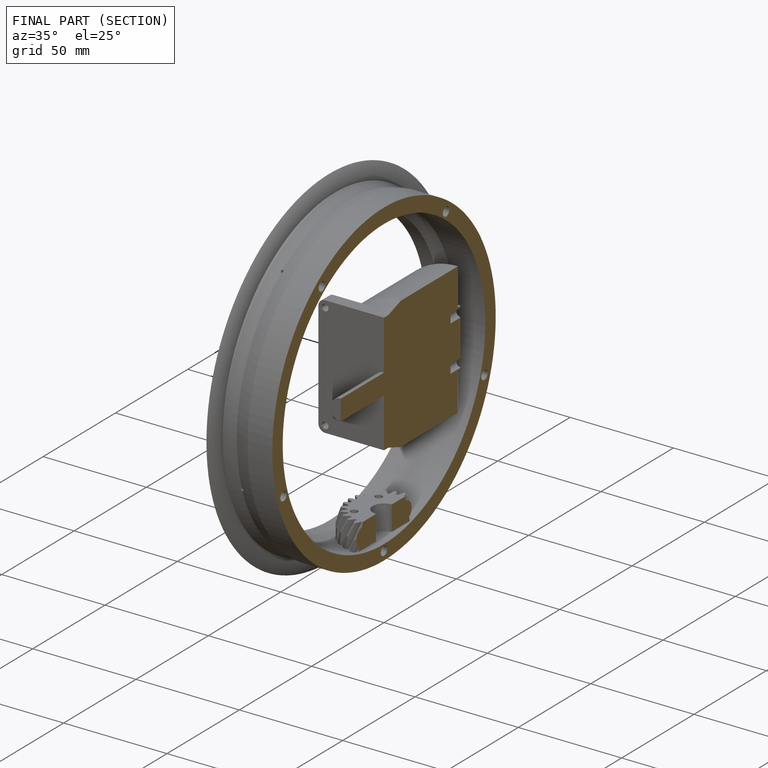
[diagram: finished part — half-section view (interior)]
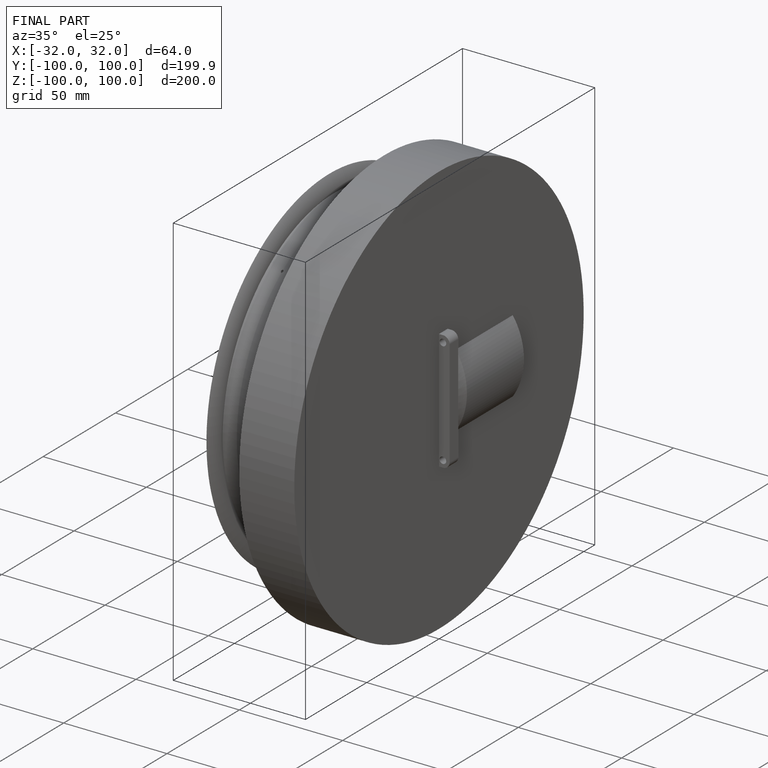
[diagram: finished part — iso view with bounding-box wireframe]
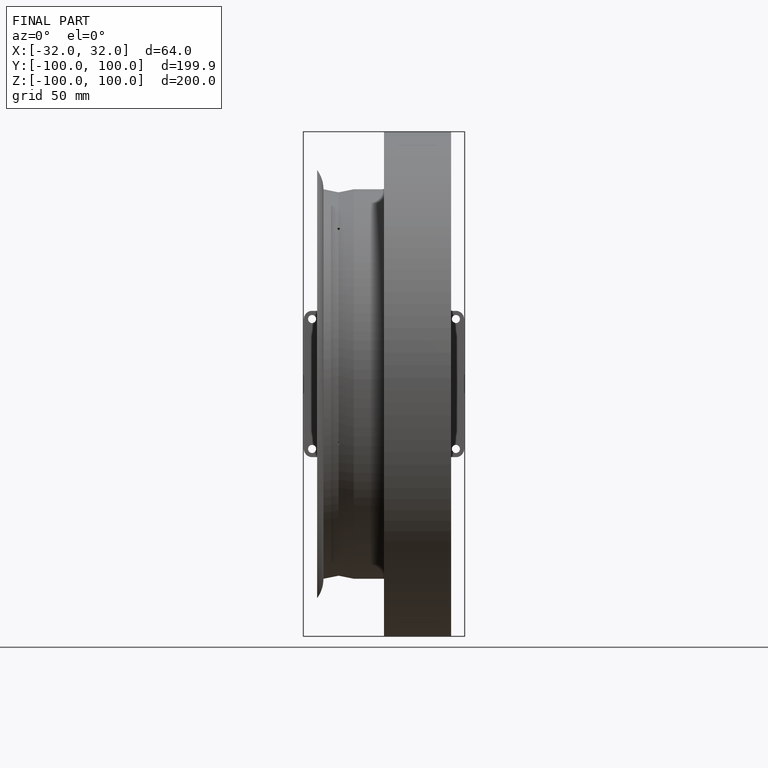
[diagram: finished part — front view with bounding-box wireframe]
